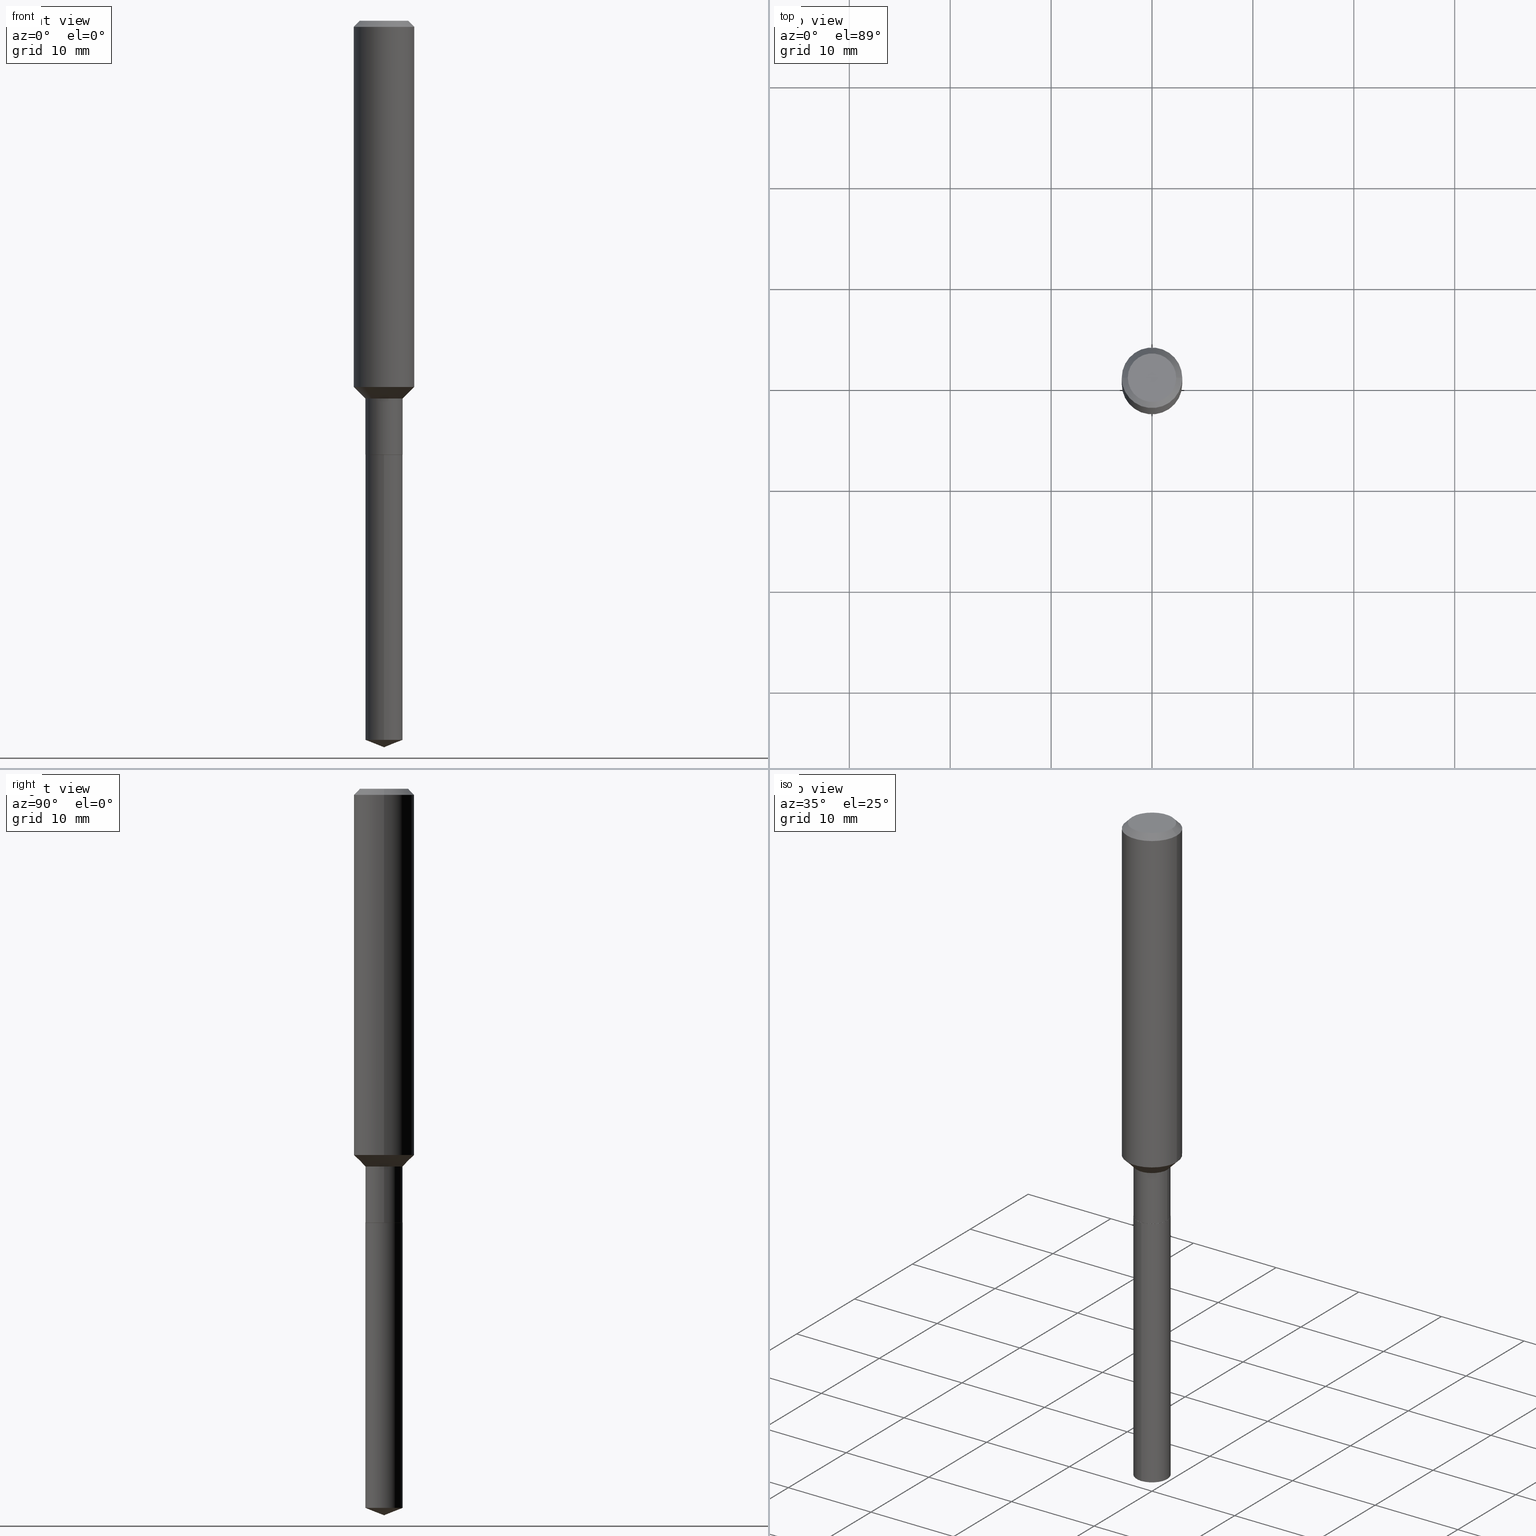
[diagram: canonical four-view strip — front | top / right | iso, engineering-drawing reading convention]
A machine part, canonical four-view strip (front | top / right | iso — engineering-drawing reading convention). The complete STEP part file that produces these views, byte-faithful:
ISO-10303-21;
HEADER;
FILE_DESCRIPTION (( 'STEP AP203' ),
    '1' );
FILE_NAME ('66613.STEP',
    '2024-04-25T02:01:55',
    ( '' ),
    ( '' ),
    'SwSTEP 2.0',
    'SolidWorks 2023',
    '' );
FILE_SCHEMA (( 'CONFIG_CONTROL_DESIGN' ));
ENDSEC;

DATA;
#1 = APPROVAL ( #435, 'UNSPECIFIED' ) ;
#2 = EDGE_LOOP ( 'NONE', ( #111, #99 ) ) ;
#3 = LENGTH_MEASURE_WITH_UNIT ( LENGTH_MEASURE( 0.02539999999999999897 ), #383 );
#4 = VECTOR ( 'NONE', #398, 39.37007874015748143 ) ;
#5 = ORIENTED_EDGE ( 'NONE', *, *, #301, .T. ) ;
#6 = EDGE_CURVE ( 'NONE', #8, #236, #134, .T. ) ;
#7 = CARTESIAN_POINT ( 'NONE',  ( 4.139934141990817236E-29, -5.910728758527560286E-15, -1.692899999999999849 ) ) ;
#8 = VERTEX_POINT ( 'NONE', #190 ) ;
#9 = CARTESIAN_POINT ( 'NONE',  ( 0.1181000000000000799, -8.246878922347486570E-16, 5.758764772215004644E-30 ) ) ;
#10 = COORDINATED_UNIVERSAL_TIME_OFFSET ( 5, 0, .BEHIND. ) ;
#11 = DIRECTION ( 'NONE',  ( 2.440414050576406318E-29, -3.498720036573669211E-15, -1.000000000000000000 ) ) ;
#12 = EDGE_CURVE ( 'NONE', #430, #164, #418, .T. ) ;
#13 = AXIS2_PLACEMENT_3D ( 'NONE', #437, #400, #281 ) ;
#14 = AXIS2_PLACEMENT_3D ( 'NONE', #480, #26, #453 ) ;
#15 = AXIS2_PLACEMENT_3D ( 'NONE', #372, #443, #107 ) ;
#16 = CARTESIAN_POINT ( 'NONE',  ( 0.07234999999999999765, -6.415946108258162351E-15, -1.692899999999999849 ) ) ;
#17 = EDGE_CURVE ( 'NONE', #224, #122, #213, .T. ) ;
#18 = DIRECTION ( 'NONE',  ( 1.000000000000000000, -6.982962677686269077E-15, 0.000000000000000000 ) ) ;
#19 = CALENDAR_DATE ( 2024, 24, 4 ) ;
#20 = CARTESIAN_POINT ( 'NONE',  ( 4.138711407587725556E-29, -5.908983017858139571E-15, -1.692399999999999904 ) ) ;
#21 = VECTOR ( 'NONE', #332, 39.37007874015748143 ) ;
#22 = FACE_OUTER_BOUND ( 'NONE', #175, .T. ) ;
#23 = AXIS2_PLACEMENT_3D ( 'NONE', #417, #235, #80 ) ;
#24 = ORIENTED_EDGE ( 'NONE', *, *, #46, .F. ) ;
#25 = DIRECTION ( 'NONE',  ( -2.440414050576406318E-29, 3.498720036573669606E-15, 1.000000000000000000 ) ) ;
#26 = DIRECTION ( 'NONE',  ( -2.445468806185136597E-29, 3.491481338843145583E-15, 1.000000000000000000 ) ) ;
#27 = LINE ( 'NONE', #489, #386 ) ;
#28 = CARTESIAN_POINT ( 'NONE',  ( 4.716267017698007905E-46, -6.733579360998555036E-32, -1.928573779297252010E-17 ) ) ;
#29 = CONICAL_SURFACE ( 'NONE', #468, 0.07284999999999997033, 0.7853981633974502774 ) ;
#30 = CC_DESIGN_PERSON_AND_ORGANIZATION_ASSIGNMENT ( #135, #285, ( #439 ) ) ;
#31 = DIRECTION ( 'NONE',  ( -1.000000000000000000, 6.982962677686265922E-15, -4.876176775795935793E-29 ) ) ;
#32 = CARTESIAN_POINT ( 'NONE',  ( 0.07284999999999997033, -5.655501472658124631E-15, -1.474099999999999744 ) ) ;
#33 = ORIENTED_EDGE ( 'NONE', *, *, #392, .T. ) ;
#34 = DIRECTION ( 'NONE',  ( -2.445468806185136597E-29, 3.491481338843145583E-15, 1.000000000000000000 ) ) ;
#35 = CIRCLE ( 'NONE', #254, 0.09447999999999998066 ) ;
#36 = PRODUCT ( '66613', '66613', '', ( #160 ) ) ;
#37 = DIRECTION ( 'NONE',  ( -6.982962677686265922E-15, -1.000000000000000000, 3.749962928845934523E-15 ) ) ;
#38 = DIRECTION ( 'NONE',  ( 1.000000000000000000, -6.982962677686266711E-15, 0.000000000000000000 ) ) ;
#39 = VERTEX_POINT ( 'NONE', #324 ) ;
#40 = ORIENTED_EDGE ( 'NONE', *, *, #46, .T. ) ;
#41 = DIRECTION ( 'NONE',  ( -2.445468806185136597E-29, 3.491481338843145583E-15, 1.000000000000000000 ) ) ;
#42 = CONICAL_SURFACE ( 'NONE', #467, 0.1180999999999999966, 0.7853981633974459475 ) ;
#43 = CIRCLE ( 'NONE', #176, 0.07284999999999999809 ) ;
#44 = APPROVAL_PERSON_ORGANIZATION ( #93, #1, #127 ) ;
#45 = CARTESIAN_POINT ( 'NONE',  ( 3.494208103717631419E-29, -4.988803111006027569E-15, -1.428849999999999731 ) ) ;
#46 = EDGE_CURVE ( 'NONE', #171, #445, #371, .T. ) ;
#47 = APPROVAL_ROLE ( '' ) ;
#48 = DIRECTION ( 'NONE',  ( -2.445468806185136597E-29, 3.491481338843145583E-15, 1.000000000000000000 ) ) ;
#49 = EDGE_CURVE ( 'NONE', #39, #60, #27, .T. ) ;
#50 = PERSON_AND_ORGANIZATION_ROLE ( 'design_supplier' ) ;
#51 = FACE_OUTER_BOUND ( 'NONE', #390, .T. ) ;
#52 = VECTOR ( 'NONE', #368, 39.37007874015748143 ) ;
#53 = FACE_OUTER_BOUND ( 'NONE', #79, .T. ) ;
#54 = PERSON_AND_ORGANIZATION ( #184, #193 ) ;
#55 = EDGE_LOOP ( 'NONE', ( #442, #270, #290, #432 ) ) ;
#56 = DIRECTION ( 'NONE',  ( -2.440414050576406318E-29, 3.498720036573669606E-15, 1.000000000000000000 ) ) ;
#57 = PERSON_AND_ORGANIZATION_ROLE ( 'design_owner' ) ;
#58 = ADVANCED_FACE ( 'NONE', ( #464 ), #219, .T. ) ;
#59 = DIRECTION ( 'NONE',  ( -6.497071151882114314E-15, -0.9304175679820237965, 0.3665012267242991340 ) ) ;
#60 = VERTEX_POINT ( 'NONE', #128 ) ;
#61 = VECTOR ( 'NONE', #238, 39.37007874015748143 ) ;
#62 = CYLINDRICAL_SURFACE ( 'NONE', #299, 0.1181000000000000799 ) ;
#63 = EDGE_CURVE ( 'NONE', #445, #171, #276, .T. ) ;
#64 = CONICAL_SURFACE ( 'NONE', #408, 0.07284999999999997033, 0.7853981633974502774 ) ;
#65 = LINE ( 'NONE', #216, #52 ) ;
#66 = DIRECTION ( 'NONE',  ( 1.000000000000000000, -6.982962677686266711E-15, 4.876176775795936353E-29 ) ) ;
#67 = EDGE_CURVE ( 'NONE', #8, #362, #174, .T. ) ;
#68 = DIRECTION ( 'NONE',  ( -0.7071067811866199593, 7.493145998870616062E-15, 0.7071067811864750752 ) ) ;
#69 = VECTOR ( 'NONE', #168, 39.37007874015748854 ) ;
#70 = AXIS2_PLACEMENT_3D ( 'NONE', #45, #41, #312 ) ;
#71 = EDGE_LOOP ( 'NONE', ( #444, #403 ) ) ;
#72 = ORIENTED_EDGE ( 'NONE', *, *, #133, .F. ) ;
#73 = ORIENTED_EDGE ( 'NONE', *, *, #102, .F. ) ;
#74 = CARTESIAN_POINT ( 'NONE',  ( 5.776197320209328408E-31, -8.246878922347560526E-17, -0.02362000000000014435 ) ) ;
#75 = ORIENTED_EDGE ( 'NONE', *, *, #133, .T. ) ;
#76 = DIRECTION ( 'NONE',  ( -2.440414050576406318E-29, 3.498720036573669606E-15, 1.000000000000000000 ) ) ;
#77 = ADVANCED_FACE ( 'NONE', ( #51 ), #42, .T. ) ;
#78 = DIRECTION ( 'NONE',  ( 1.000000000000000000, -6.982962677686265922E-15, 4.876176775795935232E-29 ) ) ;
#79 = EDGE_LOOP ( 'NONE', ( #75, #424, #169, #144 ) ) ;
#80 = DIRECTION ( 'NONE',  ( 1.000000000000000000, -6.982962677686266711E-15, 4.876176775795936353E-29 ) ) ;
#81 = EDGE_CURVE ( 'NONE', #251, #430, #202, .T. ) ;
#82 = FACE_OUTER_BOUND ( 'NONE', #86, .T. ) ;
#83 = CIRCLE ( 'NONE', #214, 0.1180999999999999966 ) ;
#84 = CALENDAR_DATE ( 2024, 24, 4 ) ;
#85 = DIRECTION ( 'NONE',  ( -2.445468806185136597E-29, 3.491481338843145583E-15, 1.000000000000000000 ) ) ;
#86 = EDGE_LOOP ( 'NONE', ( #260, #404, #308 ) ) ;
#87 = CYLINDRICAL_SURFACE ( 'NONE', #267, 0.07284999999999999809 ) ;
#88 = ORIENTED_EDGE ( 'NONE', *, *, #12, .F. ) ;
#89 = CC_DESIGN_PERSON_AND_ORGANIZATION_ASSIGNMENT ( #124, #465, ( #429 ) ) ;
#90 = COORDINATED_UNIVERSAL_TIME_OFFSET ( 5, 0, .BEHIND. ) ;
#91 = CARTESIAN_POINT ( 'NONE',  ( 6.917597667763880730E-29, -9.917471815671723220E-15, -2.834600000000000009 ) ) ;
#92 = CLOSED_SHELL ( 'NONE', ( #155, #58, #367, #330, #140 ) ) ;
#93 = PERSON_AND_ORGANIZATION ( #184, #193 ) ;
#94 = CARTESIAN_POINT ( 'NONE',  ( -0.1180999999999999966, 7.422191030112725094E-16, -0.02362000000000014435 ) ) ;
#95 = EDGE_CURVE ( 'NONE', #161, #171, #166, .T. ) ;
#96 = PERSON_AND_ORGANIZATION_ROLE ( 'creator' ) ;
#97 = DIRECTION ( 'NONE',  ( 2.445468806185136597E-29, -3.491481338843145583E-15, -1.000000000000000000 ) ) ;
#98 = DIRECTION ( 'NONE',  ( -0.7071067811865489050, 7.493145998870358893E-15, 0.7071067811865461294 ) ) ;
#99 = ORIENTED_EDGE ( 'NONE', *, *, #271, .T. ) ;
#100 = CARTESIAN_POINT ( 'NONE',  ( 4.139934141990817236E-29, -5.910728758527560286E-15, -1.692899999999999849 ) ) ;
#101 = CARTESIAN_POINT ( 'NONE',  ( 2.358133508849003952E-46, -3.366789680499277518E-32, -9.642868896486260050E-18 ) ) ;
#102 = EDGE_CURVE ( 'NONE', #112, #161, #377, .T. ) ;
#103 = CARTESIAN_POINT ( 'NONE',  ( 4.139934141990817236E-29, -5.910728758527560286E-15, -1.692899999999999849 ) ) ;
#104 = ORIENTED_EDGE ( 'NONE', *, *, #6, .F. ) ;
#105 = ORIENTED_EDGE ( 'NONE', *, *, #182, .T. ) ;
#106 = DIRECTION ( 'NONE',  ( -6.982962677686265922E-15, -1.000000000000000000, 3.749962928845934523E-15 ) ) ;
#107 = DIRECTION ( 'NONE',  ( 1.000000000000000000, -6.982962677686266711E-15, 0.000000000000000000 ) ) ;
#108 = ORIENTED_EDGE ( 'NONE', *, *, #484, .T. ) ;
#109 = CIRCLE ( 'NONE', #388, 0.07284999999999997033 ) ;
#110 =( GEOMETRIC_REPRESENTATION_CONTEXT ( 3 ) GLOBAL_UNCERTAINTY_ASSIGNED_CONTEXT ( ( #384 ) ) GLOBAL_UNIT_ASSIGNED_CONTEXT ( ( #457, #113, #114 ) ) REPRESENTATION_CONTEXT ( 'NONE', 'WORKASPACE' ) );
#111 = ORIENTED_EDGE ( 'NONE', *, *, #6, .T. ) ;
#112 = VERTEX_POINT ( 'NONE', #470 ) ;
#113 =( NAMED_UNIT ( * ) PLANE_ANGLE_UNIT ( ) SI_UNIT ( $, .RADIAN. ) );
#114 =( NAMED_UNIT ( * ) SI_UNIT ( $, .STERADIAN. ) SOLID_ANGLE_UNIT ( ) );
#115 = ORIENTED_EDGE ( 'NONE', *, *, #271, .F. ) ;
#116 = PRODUCT_DEFINITION_SHAPE ( 'NONE', 'NONE',  #439 ) ;
#117 = DIRECTION ( 'NONE',  ( -6.982962677686265922E-15, -1.000000000000000000, 3.498627837350027099E-15 ) ) ;
#118 = AXIS2_PLACEMENT_3D ( 'NONE', #103, #337, #412 ) ;
#119 = APPLICATION_CONTEXT ( 'configuration controlled 3d designs of mechanical parts and assemblies' ) ;
#120 = APPLICATION_PROTOCOL_DEFINITION ( 'international standard', 'config_control_design', 1994, #119 ) ;
#121 = EDGE_LOOP ( 'NONE', ( #349, #73 ) ) ;
#122 = VERTEX_POINT ( 'NONE', #477 ) ;
#123 = EDGE_CURVE ( 'NONE', #161, #112, #203, .T. ) ;
#124 = PERSON_AND_ORGANIZATION ( #184, #193 ) ;
#125 = CARTESIAN_POINT ( 'NONE',  ( 4.138711407587725556E-29, -5.908983017858139571E-15, -1.692399999999999904 ) ) ;
#126 = LOCAL_TIME ( 22, 1, 55.00000000000000000, #361 ) ;
#127 = APPROVAL_ROLE ( '' ) ;
#128 = CARTESIAN_POINT ( 'NONE',  ( -0.1181000000000001632, -4.149652140073347794E-15, -1.428849999999999731 ) ) ;
#129 = ORIENTED_EDGE ( 'NONE', *, *, #321, .F. ) ;
#130 = CARTESIAN_POINT ( 'NONE',  ( 4.139934141990817236E-29, -5.910728758527560286E-15, -1.692899999999999849 ) ) ;
#131 = CALENDAR_DATE ( 2024, 24, 4 ) ;
#132 = DIRECTION ( 'NONE',  ( -2.445468806185136597E-29, 3.491481338843145583E-15, 1.000000000000000000 ) ) ;
#133 = EDGE_CURVE ( 'NONE', #466, #39, #448, .T. ) ;
#134 = CIRCLE ( 'NONE', #231, 0.09447999999999998066 ) ;
#135 = PERSON_AND_ORGANIZATION ( #184, #193 ) ;
#136 = CIRCLE ( 'NONE', #378, 0.07285000000000001197 ) ;
#137 = LOCAL_TIME ( 22, 1, 55.00000000000000000, #163 ) ;
#138 = CARTESIAN_POINT ( 'NONE',  ( 5.176303830013016027E-16, 0.07284999999999408615, -1.692900000000000071 ) ) ;
#139 = DIRECTION ( 'NONE',  ( -2.445468806185136597E-29, 3.491481338843145583E-15, 1.000000000000000000 ) ) ;
#140 = ADVANCED_FACE ( 'NONE', ( #357 ), #247, .F. ) ;
#141 = DIRECTION ( 'NONE',  ( -2.440414050576406038E-29, 3.498720036573669211E-15, 1.000000000000000000 ) ) ;
#142 = AXIS2_PLACEMENT_3D ( 'NONE', #146, #217, #261 ) ;
#143 = PLANE ( 'NONE',  #158 ) ;
#144 = ORIENTED_EDGE ( 'NONE', *, *, #225, .F. ) ;
#145 = LOCAL_TIME ( 22, 1, 55.00000000000000000, #10 ) ;
#146 = CARTESIAN_POINT ( 'NONE',  ( 4.139934141990817236E-29, -5.910728758527560286E-15, -1.692899999999999849 ) ) ;
#147 = CARTESIAN_POINT ( 'NONE',  ( 4.139934141990817236E-29, -5.910728758527560286E-15, -1.692899999999999849 ) ) ;
#148 = ORIENTED_EDGE ( 'NONE', *, *, #426, .F. ) ;
#149 = LINE ( 'NONE', #333, #461 ) ;
#150 = CLOSED_SHELL ( 'NONE', ( #313, #343, #258, #189, #414, #280, #205, #434, #77, #310, #252, #194 ) ) ;
#151 = ORIENTED_EDGE ( 'NONE', *, *, #67, .F. ) ;
#152 = DIRECTION ( 'NONE',  ( 1.000000000000000000, -6.982962677686267499E-15, 4.875432709231658792E-29 ) ) ;
#153 = ORIENTED_EDGE ( 'NONE', *, *, #426, .T. ) ;
#154 = DIRECTION ( 'NONE',  ( -2.445468806185136597E-29, 3.491481338843145583E-15, 1.000000000000000000 ) ) ;
#155 = ADVANCED_FACE ( 'NONE', ( #208 ), #87, .T. ) ;
#156 = CARTESIAN_POINT ( 'NONE',  ( 0.000000000000000000, 0.000000000000000000, 0.000000000000000000 ) ) ;
#157 = AXIS2_PLACEMENT_3D ( 'NONE', #125, #167, #373 ) ;
#158 = AXIS2_PLACEMENT_3D ( 'NONE', #101, #188, #31 ) ;
#159 = EDGE_LOOP ( 'NONE', ( #227, #223, #206, #148 ) ) ;
#160 = MECHANICAL_CONTEXT ( 'NONE', #119, 'mechanical' ) ;
#161 = VERTEX_POINT ( 'NONE', #391 ) ;
#162 = APPLICATION_CONTEXT ( 'configuration controlled 3d designs of mechanical parts and assemblies' ) ;
#163 = COORDINATED_UNIVERSAL_TIME_OFFSET ( 5, 0, .BEHIND. ) ;
#164 = VERTEX_POINT ( 'NONE', #138 ) ;
#165 = PERSON_AND_ORGANIZATION ( #184, #193 ) ;
#166 = LINE ( 'NONE', #16, #21 ) ;
#167 = DIRECTION ( 'NONE',  ( -2.445468806185136597E-29, 3.491481338843145583E-15, 1.000000000000000000 ) ) ;
#168 = DIRECTION ( 'NONE',  ( 6.611014441532060278E-15, 0.9304175679820263500, 0.3665012267242925281 ) ) ;
#169 = ORIENTED_EDGE ( 'NONE', *, *, #218, .F. ) ;
#170 = DATE_AND_TIME ( #246, #255 ) ;
#171 = VERTEX_POINT ( 'NONE', #360 ) ;
#172 = DIRECTION ( 'NONE',  ( -2.445468806185136597E-29, 3.491481338843145583E-15, 1.000000000000000000 ) ) ;
#173 = APPROVAL_DATE_TIME ( #291, #1 ) ;
#174 = LINE ( 'NONE', #94, #436 ) ;
#175 = EDGE_LOOP ( 'NONE', ( #316, #197, #284, #345 ) ) ;
#176 = AXIS2_PLACEMENT_3D ( 'NONE', #7, #200, #37 ) ;
#177 = CC_DESIGN_SECURITY_CLASSIFICATION ( #429, ( #309 ) ) ;
#178 = CARTESIAN_POINT ( 'NONE',  ( 5.776197320209328408E-31, -8.246878922347560526E-17, -0.02362000000000014435 ) ) ;
#179 = ORIENTED_EDGE ( 'NONE', *, *, #225, .T. ) ;
#180 = EDGE_CURVE ( 'NONE', #251, #395, #433, .T. ) ;
#181 = DIRECTION ( 'NONE',  ( -6.982962677686265133E-15, -1.000000000000000000, 0.000000000000000000 ) ) ;
#182 = EDGE_CURVE ( 'NONE', #430, #395, #136, .T. ) ;
#183 = CARTESIAN_POINT ( 'NONE',  ( 0.1181000000000001632, -5.813491003240776621E-15, -1.428849999999999731 ) ) ;
#184 = PERSON ( 'UNSPECIFIED', 'UNSPECIFIED', 'UNSPECIFIED', ('UNSPECIFIED'), ('UNSPECIFIED'), ('UNSPECIFIED') ) ;
#185 = AXIS2_PLACEMENT_3D ( 'NONE', #74, #303, #487 ) ;
#186 = CARTESIAN_POINT ( 'NONE',  ( 0.000000000000000000, 0.000000000000000000, 0.000000000000000000 ) ) ;
#187 = CC_DESIGN_APPROVAL ( #486, ( #439 ) ) ;
#188 = DIRECTION ( 'NONE',  ( 2.438088387897960049E-29, -3.491481338843145188E-15, -1.000000000000000000 ) ) ;
#189 = ADVANCED_FACE ( 'NONE', ( #53 ), #29, .T. ) ;
#190 = CARTESIAN_POINT ( 'NONE',  ( -0.09447999999999998066, 7.009847083995354710E-16, -1.928573779297727792E-17 ) ) ;
#191 = LINE ( 'NONE', #226, #475 ) ;
#192 = EDGE_LOOP ( 'NONE', ( #314, #153, #179, #488 ) ) ;
#193 = ORGANIZATION ( 'UNSPECIFIED', 'UNSPECIFIED', '' ) ;
#194 = ADVANCED_FACE ( 'NONE', ( #22 ), #245, .T. ) ;
#195 = DESIGN_CONTEXT ( 'detailed design', #162, 'design' ) ;
#196 = DIRECTION ( 'NONE',  ( -2.445468806185136877E-29, 3.491481338843145188E-15, 1.000000000000000000 ) ) ;
#197 = ORIENTED_EDGE ( 'NONE', *, *, #102, .T. ) ;
#198 = FACE_OUTER_BOUND ( 'NONE', #447, .T. ) ;
#199 = AXIS2_PLACEMENT_3D ( 'NONE', #100, #25, #416 ) ;
#200 = DIRECTION ( 'NONE',  ( -2.440414050576406318E-29, 3.498720036573669606E-15, 1.000000000000000000 ) ) ;
#201 = FACE_OUTER_BOUND ( 'NONE', #192, .T. ) ;
#202 = LINE ( 'NONE', #363, #69 ) ;
#203 = CIRCLE ( 'NONE', #232, 0.07234999999999999765 ) ;
#204 = CIRCLE ( 'NONE', #482, 0.07285000000000001197 ) ;
#205 = ADVANCED_FACE ( 'NONE', ( #201 ), #64, .T. ) ;
#206 = ORIENTED_EDGE ( 'NONE', *, *, #463, .T. ) ;
#207 = ORIENTED_EDGE ( 'NONE', *, *, #229, .F. ) ;
#208 = FACE_OUTER_BOUND ( 'NONE', #263, .T. ) ;
#209 = APPROVAL_STATUS ( 'not_yet_approved' ) ;
#210 = DIRECTION ( 'NONE',  ( -2.440414050576406318E-29, 3.498720036573669606E-15, 1.000000000000000000 ) ) ;
#211 = DATE_TIME_ROLE ( 'creation_date' ) ;
#212 = DIRECTION ( 'NONE',  ( -6.982962677686265133E-15, -1.000000000000000000, 0.000000000000000000 ) ) ;
#213 = LINE ( 'NONE', #9, #61 ) ;
#214 = AXIS2_PLACEMENT_3D ( 'NONE', #266, #154, #38 ) ;
#215 = PLANE ( 'NONE',  #118 ) ;
#216 = CARTESIAN_POINT ( 'NONE',  ( -0.07284999999999998421, 5.176303830012328732E-16, -3.583444213250698428E-30 ) ) ;
#217 = DIRECTION ( 'NONE',  ( -2.445468806185136597E-29, 3.491481338843145583E-15, 1.000000000000000000 ) ) ;
#218 = EDGE_CURVE ( 'NONE', #224, #60, #268, .T. ) ;
#219 = CONICAL_SURFACE ( 'NONE', #289, 99.94676754583932166, 1.195550537616117293 ) ;
#220 = CARTESIAN_POINT ( 'NONE',  ( 4.716267017698007905E-46, -6.733579360998555036E-32, -1.928573779297252010E-17 ) ) ;
#221 = CIRCLE ( 'NONE', #199, 0.07284999999999999809 ) ;
#222 = LINE ( 'NONE', #32, #438 ) ;
#223 = ORIENTED_EDGE ( 'NONE', *, *, #63, .T. ) ;
#224 = VERTEX_POINT ( 'NONE', #183 ) ;
#225 = EDGE_CURVE ( 'NONE', #466, #224, #222, .T. ) ;
#226 = CARTESIAN_POINT ( 'NONE',  ( -5.087088310694030658E-16, -0.07285000000000591003, -1.692899999999999627 ) ) ;
#227 = ORIENTED_EDGE ( 'NONE', *, *, #359, .F. ) ;
#228 = CYLINDRICAL_SURFACE ( 'NONE', #331, 0.07284999999999998421 ) ;
#229 = EDGE_CURVE ( 'NONE', #395, #425, #191, .T. ) ;
#230 = CARTESIAN_POINT ( 'NONE',  ( 0.07284999999999998421, -5.087088310694443823E-16, 3.552294781167338121E-30 ) ) ;
#231 = AXIS2_PLACEMENT_3D ( 'NONE', #220, #374, #152 ) ;
#232 = AXIS2_PLACEMENT_3D ( 'NONE', #241, #139, #323 ) ;
#233 = AXIS2_PLACEMENT_3D ( 'NONE', #471, #132, #320 ) ;
#234 = PRODUCT_RELATED_PRODUCT_CATEGORY ( 'detail', '', ( #36 ) ) ;
#235 = DIRECTION ( 'NONE',  ( -2.445468806185136597E-29, 3.491481338843145583E-15, 1.000000000000000000 ) ) ;
#236 = VERTEX_POINT ( 'NONE', #297 ) ;
#237 = CARTESIAN_POINT ( 'NONE',  ( -0.07284999999999999809, -5.010257446722176396E-15, -1.692399999999999904 ) ) ;
#238 = DIRECTION ( 'NONE',  ( -2.445468806185136877E-29, 3.491481338843145188E-15, 1.000000000000000000 ) ) ;
#239 = DIRECTION ( 'NONE',  ( 1.000000000000000000, 0.000000000000000000, 0.000000000000000000 ) ) ;
#240 = VECTOR ( 'NONE', #196, 39.37007874015748143 ) ;
#241 = CARTESIAN_POINT ( 'NONE',  ( 4.139934141990817236E-29, -5.910728758527560286E-15, -1.692899999999999849 ) ) ;
#242 = SECURITY_CLASSIFICATION_LEVEL ( 'unclassified' ) ;
#243 = CARTESIAN_POINT ( 'NONE',  ( 3.604865567197509213E-29, -5.146792641588679559E-15, -1.474099999999999744 ) ) ;
#244 = DIRECTION ( 'NONE',  ( -2.440414050576406318E-29, 3.498720036573669606E-15, 1.000000000000000000 ) ) ;
#245 = CONICAL_SURFACE ( 'NONE', #397, 0.07234999999999999765, 0.7853981633975507526 ) ;
#246 = CALENDAR_DATE ( 2024, 24, 4 ) ;
#247 = PLANE ( 'NONE',  #298 ) ;
#248 = ORIENTED_EDGE ( 'NONE', *, *, #392, .F. ) ;
#249 = DATE_TIME_ROLE ( 'classification_date' ) ;
#250 = DIRECTION ( 'NONE',  ( 1.000000000000000000, -6.982962677686265922E-15, 0.000000000000000000 ) ) ;
#251 = VERTEX_POINT ( 'NONE', #334 ) ;
#252 = ADVANCED_FACE ( 'NONE', ( #259 ), #215, .F. ) ;
#253 = CYLINDRICAL_SURFACE ( 'NONE', #365, 0.07284999999999999809 ) ;
#254 = AXIS2_PLACEMENT_3D ( 'NONE', #28, #336, #446 ) ;
#255 = LOCAL_TIME ( 22, 1, 55.00000000000000000, #274 ) ;
#256 = DIRECTION ( 'NONE',  ( -2.440414050576406318E-29, 3.498720036573669606E-15, 1.000000000000000000 ) ) ;
#257 = FACE_OUTER_BOUND ( 'NONE', #2, .T. ) ;
#258 = ADVANCED_FACE ( 'NONE', ( #455 ), #62, .T. ) ;
#259 = FACE_OUTER_BOUND ( 'NONE', #121, .T. ) ;
#260 = ORIENTED_EDGE ( 'NONE', *, *, #81, .F. ) ;
#261 = DIRECTION ( 'NONE',  ( 1.000000000000000000, -6.982962677686272233E-15, 0.000000000000000000 ) ) ;
#262 = APPROVAL_PERSON_ORGANIZATION ( #328, #486, #47 ) ;
#263 = EDGE_LOOP ( 'NONE', ( #304, #286, #387, #207 ) ) ;
#264 = CARTESIAN_POINT ( 'NONE',  ( -5.087088310694030658E-16, -0.07285000000000591003, -1.692899999999999627 ) ) ;
#265 = CC_DESIGN_PERSON_AND_ORGANIZATION_ASSIGNMENT ( #165, #96, ( #309 ) ) ;
#266 = CARTESIAN_POINT ( 'NONE',  ( 5.776197320209328408E-31, -8.246878922347560526E-17, -0.02362000000000014435 ) ) ;
#267 = AXIS2_PLACEMENT_3D ( 'NONE', #130, #56, #283 ) ;
#268 = CIRCLE ( 'NONE', #233, 0.1181000000000001632 ) ;
#269 = ORIENTED_EDGE ( 'NONE', *, *, #67, .T. ) ;
#270 = ORIENTED_EDGE ( 'NONE', *, *, #399, .T. ) ;
#271 = EDGE_CURVE ( 'NONE', #236, #8, #35, .T. ) ;
#272 = DIMENSIONAL_EXPONENTS ( 1.000000000000000000, 0.000000000000000000, 0.000000000000000000, 0.000000000000000000, 0.000000000000000000, 0.000000000000000000, 0.000000000000000000 ) ;
#273 = CARTESIAN_POINT ( 'NONE',  ( -8.915313846624587050E-28, 1.278396659053883251E-13, 36.53547874015747965 ) ) ;
#274 = COORDINATED_UNIVERSAL_TIME_OFFSET ( 5, 0, .BEHIND. ) ;
#275 = EDGE_LOOP ( 'NONE', ( #115, #33, #108, #151 ) ) ;
#276 = CIRCLE ( 'NONE', #407, 0.07284999999999999809 ) ;
#277 = ORIENTED_EDGE ( 'NONE', *, *, #348, .T. ) ;
#278 = ORIENTED_EDGE ( 'NONE', *, *, #17, .F. ) ;
#279 = PERSON_AND_ORGANIZATION ( #184, #193 ) ;
#280 = ADVANCED_FACE ( 'NONE', ( #370 ), #366, .T. ) ;
#281 = DIRECTION ( 'NONE',  ( 1.000000000000000000, -6.982962677686269077E-15, 0.000000000000000000 ) ) ;
#282 = ORIENTED_EDGE ( 'NONE', *, *, #81, .T. ) ;
#283 = DIRECTION ( 'NONE',  ( -6.982962677686265922E-15, -1.000000000000000000, 3.749962928845934523E-15 ) ) ;
#284 = ORIENTED_EDGE ( 'NONE', *, *, #95, .T. ) ;
#285 = PERSON_AND_ORGANIZATION_ROLE ( 'creator' ) ;
#286 = ORIENTED_EDGE ( 'NONE', *, *, #12, .T. ) ;
#287 = ORIENTED_EDGE ( 'NONE', *, *, #463, .F. ) ;
#288 = DIRECTION ( 'NONE',  ( 1.000000000000000000, -6.982962677686272233E-15, 0.000000000000000000 ) ) ;
#289 = AXIS2_PLACEMENT_3D ( 'NONE', #273, #210, #329 ) ;
#290 = ORIENTED_EDGE ( 'NONE', *, *, #17, .T. ) ;
#291 = DATE_AND_TIME ( #19, #126 ) ;
#292 = ORIENTED_EDGE ( 'NONE', *, *, #218, .T. ) ;
#293 = DIRECTION ( 'NONE',  ( -0.7071067811865459074, 2.468850131082239706E-15, -0.7071067811865492381 ) ) ;
#294 = EDGE_CURVE ( 'NONE', #112, #445, #481, .T. ) ;
#295 = CARTESIAN_POINT ( 'NONE',  ( 3.604865567197509213E-29, -5.146792641588679559E-15, -1.474099999999999744 ) ) ;
#296 = EDGE_LOOP ( 'NONE', ( #476, #282, #305 ) ) ;
#297 = CARTESIAN_POINT ( 'NONE',  ( 0.09447999999999998066, -7.704367267948738690E-16, -1.928573779296752193E-17 ) ) ;
#298 = AXIS2_PLACEMENT_3D ( 'NONE', #402, #11, #469 ) ;
#299 = AXIS2_PLACEMENT_3D ( 'NONE', #186, #375, #66 ) ;
#300 = CARTESIAN_POINT ( 'NONE',  ( 6.856123819099529673E-29, -9.804816831078297539E-15, -2.805903621851451479 ) ) ;
#301 = EDGE_CURVE ( 'NONE', #362, #122, #341, .T. ) ;
#302 = FACE_OUTER_BOUND ( 'NONE', #405, .T. ) ;
#303 = DIRECTION ( 'NONE',  ( 2.445468806185136597E-29, -3.491481338843145583E-15, -1.000000000000000000 ) ) ;
#304 = ORIENTED_EDGE ( 'NONE', *, *, #340, .T. ) ;
#305 = ORIENTED_EDGE ( 'NONE', *, *, #340, .F. ) ;
#306 = VECTOR ( 'NONE', #422, 39.37007874015748143 ) ;
#307 = LINE ( 'NONE', #230, #240 ) ;
#308 = ORIENTED_EDGE ( 'NONE', *, *, #182, .F. ) ;
#309 = PRODUCT_DEFINITION_FORMATION_WITH_SPECIFIED_SOURCE ( 'ANY', '', #36, .NOT_KNOWN. ) ;
#310 = ADVANCED_FACE ( 'NONE', ( #257 ), #143, .F. ) ;
#311 = DIRECTION ( 'NONE',  ( 0.000000000000000000, 0.000000000000000000, 1.000000000000000000 ) ) ;
#312 = DIRECTION ( 'NONE',  ( 1.000000000000000000, -6.982962677686263555E-15, 0.000000000000000000 ) ) ;
#313 = ADVANCED_FACE ( 'NONE', ( #339 ), #355, .T. ) ;
#314 = ORIENTED_EDGE ( 'NONE', *, *, #49, .F. ) ;
#315 = CARTESIAN_POINT ( 'NONE',  ( 0.1180999999999999966, -8.926936027602933910E-16, -0.02362000000000014435 ) ) ;
#316 = ORIENTED_EDGE ( 'NONE', *, *, #294, .F. ) ;
#317 = APPROVAL_ROLE ( '' ) ;
#318 = ORIENTED_EDGE ( 'NONE', *, *, #359, .T. ) ;
#319 = APPROVAL_DATE_TIME ( #358, #486 ) ;
#320 = DIRECTION ( 'NONE',  ( 1.000000000000000000, -6.982962677686263555E-15, 0.000000000000000000 ) ) ;
#321 = EDGE_CURVE ( 'NONE', #164, #425, #221, .T. ) ;
#322 = DATE_AND_TIME ( #84, #137 ) ;
#323 = DIRECTION ( 'NONE',  ( 1.000000000000000000, -6.982962677686272233E-15, 0.000000000000000000 ) ) ;
#324 = CARTESIAN_POINT ( 'NONE',  ( -0.07284999999999997033, -5.010257446722176396E-15, -1.474099999999999744 ) ) ;
#325 = DIRECTION ( 'NONE',  ( 1.000000000000000000, -6.982962677686269077E-15, 0.000000000000000000 ) ) ;
#326 = EDGE_LOOP ( 'NONE', ( #459, #478, #24, #338 ) ) ;
#327 = ADVANCED_BREP_SHAPE_REPRESENTATION ( '66613', ( #451, #454, #420 ), #110 ) ;
#328 = PERSON_AND_ORGANIZATION ( #184, #193 ) ;
#329 = DIRECTION ( 'NONE',  ( -6.982962677686265922E-15, -1.000000000000000000, 3.498627837350027099E-15 ) ) ;
#330 = ADVANCED_FACE ( 'NONE', ( #302 ), #253, .T. ) ;
#331 = AXIS2_PLACEMENT_3D ( 'NONE', #385, #34, #78 ) ;
#332 = DIRECTION ( 'NONE',  ( 0.7071067811866199593, -2.468850131083015945E-15, 0.7071067811864750752 ) ) ;
#333 = CARTESIAN_POINT ( 'NONE',  ( -0.1181000000000000799, 8.391509709326788873E-16, -5.809262341591047988E-30 ) ) ;
#334 = CARTESIAN_POINT ( 'NONE',  ( 6.917597667763880730E-29, -9.917471815671723220E-15, -2.834600000000000009 ) ) ;
#335 = CONICAL_SURFACE ( 'NONE', #185, 0.1180999999999999966, 0.7853981633974459475 ) ;
#336 = DIRECTION ( 'NONE',  ( -2.445468806185136597E-29, 3.491481338843145583E-15, 1.000000000000000000 ) ) ;
#337 = DIRECTION ( 'NONE',  ( -2.438088387897960049E-29, 3.491481338843145188E-15, 1.000000000000000000 ) ) ;
#338 = ORIENTED_EDGE ( 'NONE', *, *, #95, .F. ) ;
#339 = FACE_OUTER_BOUND ( 'NONE', #326, .T. ) ;
#340 = EDGE_CURVE ( 'NONE', #395, #430, #204, .T. ) ;
#341 = CIRCLE ( 'NONE', #15, 0.1180999999999999966 ) ;
#342 = CARTESIAN_POINT ( 'NONE',  ( 0.07284999999999997033, -5.655501472658124631E-15, -1.474099999999999744 ) ) ;
#343 = ADVANCED_FACE ( 'NONE', ( #406 ), #335, .T. ) ;
#344 = CARTESIAN_POINT ( 'NONE',  ( 5.176303830013016027E-16, 0.07284999999999021425, -2.805903621851451479 ) ) ;
#345 = ORIENTED_EDGE ( 'NONE', *, *, #63, .F. ) ;
#346 = CONICAL_SURFACE ( 'NONE', #413, 99.94676754583932166, 1.195550537616117293 ) ;
#347 = CARTESIAN_POINT ( 'NONE',  ( 3.604865567197509213E-29, -5.146792641588679559E-15, -1.474099999999999744 ) ) ;
#348 = EDGE_CURVE ( 'NONE', #60, #362, #149, .T. ) ;
#349 = ORIENTED_EDGE ( 'NONE', *, *, #123, .F. ) ;
#350 = APPROVAL_DATE_TIME ( #170, #364 ) ;
#351 = CARTESIAN_POINT ( 'NONE',  ( 6.856123819099529673E-29, -9.804816831078297539E-15, -2.805903621851451479 ) ) ;
#352 = APPLICATION_PROTOCOL_DEFINITION ( 'international standard', 'config_control_design', 1994, #162 ) ;
#353 = VECTOR ( 'NONE', #59, 39.37007874015748143 ) ;
#354 = DIRECTION ( 'NONE',  ( -2.445468806185136597E-29, 3.491481338843145583E-15, 1.000000000000000000 ) ) ;
#355 = CONICAL_SURFACE ( 'NONE', #142, 0.07234999999999999765, 0.7853981633975507526 ) ;
#356 = APPROVAL_PERSON_ORGANIZATION ( #54, #364, #317 ) ;
#357 = FACE_OUTER_BOUND ( 'NONE', #71, .T. ) ;
#358 = DATE_AND_TIME ( #131, #145 ) ;
#359 = EDGE_CURVE ( 'NONE', #445, #39, #65, .T. ) ;
#360 = CARTESIAN_POINT ( 'NONE',  ( 0.07284999999999999809, -6.417691848927583855E-15, -1.692399999999999904 ) ) ;
#361 = COORDINATED_UNIVERSAL_TIME_OFFSET ( 5, 0, .BEHIND. ) ;
#362 = VERTEX_POINT ( 'NONE', #452 ) ;
#363 = CARTESIAN_POINT ( 'NONE',  ( 6.934862132315807139E-29, -9.892963032895715087E-15, -2.834600000000000009 ) ) ;
#364 = APPROVAL ( #209, 'UNSPECIFIED' ) ;
#365 = AXIS2_PLACEMENT_3D ( 'NONE', #147, #256, #106 ) ;
#366 = CYLINDRICAL_SURFACE ( 'NONE', #14, 0.07284999999999998421 ) ;
#367 = ADVANCED_FACE ( 'NONE', ( #82 ), #346, .T. ) ;
#368 = DIRECTION ( 'NONE',  ( -2.445468806185136877E-29, 3.491481338843145188E-15, 1.000000000000000000 ) ) ;
#369 = CC_DESIGN_PERSON_AND_ORGANIZATION_ASSIGNMENT ( #440, #57, ( #36 ) ) ;
#370 = FACE_OUTER_BOUND ( 'NONE', #159, .T. ) ;
#371 = CIRCLE ( 'NONE', #157, 0.07284999999999999809 ) ;
#372 = CARTESIAN_POINT ( 'NONE',  ( 5.776197320209328408E-31, -8.246878922347560526E-17, -0.02362000000000014435 ) ) ;
#373 = DIRECTION ( 'NONE',  ( 1.000000000000000000, -6.982962677686265922E-15, 0.000000000000000000 ) ) ;
#374 = DIRECTION ( 'NONE',  ( -2.445468806185136597E-29, 3.491481338843145583E-15, 1.000000000000000000 ) ) ;
#375 = DIRECTION ( 'NONE',  ( -2.445468806185136597E-29, 3.491481338843145583E-15, 1.000000000000000000 ) ) ;
#376 = CARTESIAN_POINT ( 'NONE',  ( -5.087088310693760473E-16, -0.07285000000000982356, -2.805903621851451479 ) ) ;
#377 = CIRCLE ( 'NONE', #449, 0.07234999999999999765 ) ;
#378 = AXIS2_PLACEMENT_3D ( 'NONE', #351, #244, #212 ) ;
#379 = DIRECTION ( 'NONE',  ( -2.445468806185136597E-29, 3.491481338843145583E-15, 1.000000000000000000 ) ) ;
#380 = LOCAL_TIME ( 22, 1, 55.00000000000000000, #90 ) ;
#381 = DIRECTION ( 'NONE',  ( 1.000000000000000000, -6.982962677686269077E-15, 0.000000000000000000 ) ) ;
#382 = CARTESIAN_POINT ( 'NONE',  ( 5.176303830012742884E-16, 0.07284999999999408615, -1.692900000000000071 ) ) ;
#383 =( LENGTH_UNIT ( ) NAMED_UNIT ( * ) SI_UNIT ( $, .METRE. ) );
#384 = UNCERTAINTY_MEASURE_WITH_UNIT (LENGTH_MEASURE( 1.000000000000000082E-05 ), #457, 'distance_accuracy_value', 'NONE');
#385 = CARTESIAN_POINT ( 'NONE',  ( 0.000000000000000000, 0.000000000000000000, 0.000000000000000000 ) ) ;
#386 = VECTOR ( 'NONE', #98, 39.37007874015748143 ) ;
#387 = ORIENTED_EDGE ( 'NONE', *, *, #419, .F. ) ;
#388 = AXIS2_PLACEMENT_3D ( 'NONE', #347, #379, #381 ) ;
#389 = CC_DESIGN_APPROVAL ( #1, ( #309 ) ) ;
#390 = EDGE_LOOP ( 'NONE', ( #248, #104, #269, #5 ) ) ;
#391 = CARTESIAN_POINT ( 'NONE',  ( 0.07234999999999999765, -6.415946108258162351E-15, -1.692899999999999849 ) ) ;
#392 = EDGE_CURVE ( 'NONE', #236, #122, #458, .T. ) ;
#393 = DATE_AND_TIME ( #401, #380 ) ;
#394 = CARTESIAN_POINT ( 'NONE',  ( 4.139934141990817236E-29, -5.910728758527560286E-15, -1.692899999999999849 ) ) ;
#395 = VERTEX_POINT ( 'NONE', #376 ) ;
#396 = CARTESIAN_POINT ( 'NONE',  ( 4.139934141990817236E-29, -5.910728758527560286E-15, -1.692899999999999849 ) ) ;
#397 = AXIS2_PLACEMENT_3D ( 'NONE', #396, #354, #288 ) ;
#398 = DIRECTION ( 'NONE',  ( -2.440414050576406038E-29, 3.498720036573669211E-15, 1.000000000000000000 ) ) ;
#399 = EDGE_CURVE ( 'NONE', #60, #224, #428, .T. ) ;
#400 = DIRECTION ( 'NONE',  ( -2.445468806185136597E-29, 3.491481338843145583E-15, 1.000000000000000000 ) ) ;
#401 = CALENDAR_DATE ( 2024, 24, 4 ) ;
#402 = CARTESIAN_POINT ( 'NONE',  ( 4.139934141990817236E-29, -5.910728758527560286E-15, -1.692899999999999849 ) ) ;
#403 = ORIENTED_EDGE ( 'NONE', *, *, #321, .T. ) ;
#404 = ORIENTED_EDGE ( 'NONE', *, *, #180, .T. ) ;
#405 = EDGE_LOOP ( 'NONE', ( #88, #105, #423, #129 ) ) ;
#406 = FACE_OUTER_BOUND ( 'NONE', #275, .T. ) ;
#407 = AXIS2_PLACEMENT_3D ( 'NONE', #20, #85, #250 ) ;
#408 = AXIS2_PLACEMENT_3D ( 'NONE', #295, #172, #325 ) ;
#409 = DIRECTION ( 'NONE',  ( -2.445468806185136877E-29, 3.491481338843145188E-15, 1.000000000000000000 ) ) ;
#410 = CC_DESIGN_DATE_AND_TIME_ASSIGNMENT ( #322, #249, ( #429 ) ) ;
#411 = DIRECTION ( 'NONE',  ( 0.7071067811865489050, -2.468850131082271655E-15, 0.7071067811865461294 ) ) ;
#412 = DIRECTION ( 'NONE',  ( 1.000000000000000000, -6.982962677686265922E-15, 4.876176775795935793E-29 ) ) ;
#413 = AXIS2_PLACEMENT_3D ( 'NONE', #460, #76, #117 ) ;
#414 = ADVANCED_FACE ( 'NONE', ( #198 ), #228, .T. ) ;
#415 = ORIENTED_EDGE ( 'NONE', *, *, #484, .F. ) ;
#416 = DIRECTION ( 'NONE',  ( -6.982962677686265922E-15, -1.000000000000000000, 3.749962928845934523E-15 ) ) ;
#417 = CARTESIAN_POINT ( 'NONE',  ( 0.000000000000000000, 0.000000000000000000, 0.000000000000000000 ) ) ;
#418 = LINE ( 'NONE', #382, #4 ) ;
#419 = EDGE_CURVE ( 'NONE', #425, #164, #43, .T. ) ;
#420 = AXIS2_PLACEMENT_3D ( 'NONE', #156, #311, #239 ) ;
#421 = FACE_OUTER_BOUND ( 'NONE', #55, .T. ) ;
#422 = DIRECTION ( 'NONE',  ( 0.7071067811865459074, -7.319954787623251312E-15, -0.7071067811865492381 ) ) ;
#423 = ORIENTED_EDGE ( 'NONE', *, *, #229, .T. ) ;
#424 = ORIENTED_EDGE ( 'NONE', *, *, #49, .T. ) ;
#425 = VERTEX_POINT ( 'NONE', #264 ) ;
#426 = EDGE_CURVE ( 'NONE', #39, #466, #109, .T. ) ;
#427 = SHAPE_DEFINITION_REPRESENTATION ( #116, #327 ) ;
#428 = CIRCLE ( 'NONE', #70, 0.1181000000000001632 ) ;
#429 = SECURITY_CLASSIFICATION ( '', '', #242 ) ;
#430 = VERTEX_POINT ( 'NONE', #344 ) ;
#431 = DIRECTION ( 'NONE',  ( 1.000000000000000000, -6.982962677686272233E-15, 0.000000000000000000 ) ) ;
#432 = ORIENTED_EDGE ( 'NONE', *, *, #301, .F. ) ;
#433 = LINE ( 'NONE', #91, #353 ) ;
#434 = ADVANCED_FACE ( 'NONE', ( #421 ), #490, .T. ) ;
#435 = APPROVAL_STATUS ( 'not_yet_approved' ) ;
#436 = VECTOR ( 'NONE', #293, 39.37007874015748143 ) ;
#437 = CARTESIAN_POINT ( 'NONE',  ( 3.604865567197509213E-29, -5.146792641588679559E-15, -1.474099999999999744 ) ) ;
#438 = VECTOR ( 'NONE', #411, 39.37007874015748143 ) ;
#439 = PRODUCT_DEFINITION ( 'UNKNOWN', '', #309, #195 ) ;
#440 = PERSON_AND_ORGANIZATION ( #184, #193 ) ;
#441 = DIRECTION ( 'NONE',  ( -1.000000000000000000, 6.982962677686266711E-15, 0.000000000000000000 ) ) ;
#442 = ORIENTED_EDGE ( 'NONE', *, *, #348, .F. ) ;
#443 = DIRECTION ( 'NONE',  ( -2.445468806185136597E-29, 3.491481338843145583E-15, 1.000000000000000000 ) ) ;
#444 = ORIENTED_EDGE ( 'NONE', *, *, #419, .T. ) ;
#445 = VERTEX_POINT ( 'NONE', #237 ) ;
#446 = DIRECTION ( 'NONE',  ( 1.000000000000000000, -6.982962677686267499E-15, 4.875432709231658792E-29 ) ) ;
#447 = EDGE_LOOP ( 'NONE', ( #40, #318, #72, #287 ) ) ;
#448 = CIRCLE ( 'NONE', #13, 0.07284999999999997033 ) ;
#449 = AXIS2_PLACEMENT_3D ( 'NONE', #394, #474, #431 ) ;
#450 = VECTOR ( 'NONE', #68, 39.37007874015748143 ) ;
#451 = MANIFOLD_SOLID_BREP ( 'Body-Move/Copy2[1]', #92 ) ;
#452 = CARTESIAN_POINT ( 'NONE',  ( -0.1180999999999999966, -1.696484979182072133E-15, -0.02362000000000014435 ) ) ;
#453 = DIRECTION ( 'NONE',  ( 1.000000000000000000, -6.982962677686265922E-15, 4.876176775795935232E-29 ) ) ;
#454 = MANIFOLD_SOLID_BREP ( 'Body-Move/Copy2[2]', #150 ) ;
#455 = FACE_OUTER_BOUND ( 'NONE', #479, .T. ) ;
#456 = CC_DESIGN_DATE_AND_TIME_ASSIGNMENT ( #393, #211, ( #439 ) ) ;
#457 =( CONVERSION_BASED_UNIT ( 'INCH', #3 ) LENGTH_UNIT ( ) NAMED_UNIT ( #272 ) );
#458 = LINE ( 'NONE', #315, #306 ) ;
#459 = ORIENTED_EDGE ( 'NONE', *, *, #123, .T. ) ;
#460 = CARTESIAN_POINT ( 'NONE',  ( -8.915313846624587050E-28, 1.278396659053883251E-13, 36.53547874015747965 ) ) ;
#461 = VECTOR ( 'NONE', #409, 39.37007874015748143 ) ;
#462 = CC_DESIGN_APPROVAL ( #364, ( #429 ) ) ;
#463 = EDGE_CURVE ( 'NONE', #171, #466, #307, .T. ) ;
#464 = FACE_OUTER_BOUND ( 'NONE', #296, .T. ) ;
#465 = PERSON_AND_ORGANIZATION_ROLE ( 'classification_officer' ) ;
#466 = VERTEX_POINT ( 'NONE', #342 ) ;
#467 = AXIS2_PLACEMENT_3D ( 'NONE', #178, #97, #441 ) ;
#468 = AXIS2_PLACEMENT_3D ( 'NONE', #243, #48, #18 ) ;
#469 = DIRECTION ( 'NONE',  ( 6.982962677686265922E-15, 1.000000000000000000, -3.498720036573669211E-15 ) ) ;
#470 = CARTESIAN_POINT ( 'NONE',  ( -0.07234999999999999765, -5.394001862031017209E-15, -1.692899999999999849 ) ) ;
#471 = CARTESIAN_POINT ( 'NONE',  ( 3.494208103717631419E-29, -4.988803111006027569E-15, -1.428849999999999731 ) ) ;
#472 = CC_DESIGN_PERSON_AND_ORGANIZATION_ASSIGNMENT ( #279, #50, ( #309 ) ) ;
#473 = APPROVAL_STATUS ( 'not_yet_approved' ) ;
#474 = DIRECTION ( 'NONE',  ( -2.445468806185136597E-29, 3.491481338843145583E-15, 1.000000000000000000 ) ) ;
#475 = VECTOR ( 'NONE', #141, 39.37007874015748143 ) ;
#476 = ORIENTED_EDGE ( 'NONE', *, *, #180, .F. ) ;
#477 = CARTESIAN_POINT ( 'NONE',  ( 0.1180999999999999966, -9.071566814582237199E-16, -0.02362000000000014435 ) ) ;
#478 = ORIENTED_EDGE ( 'NONE', *, *, #294, .T. ) ;
#479 = EDGE_LOOP ( 'NONE', ( #292, #277, #415, #278 ) ) ;
#480 = CARTESIAN_POINT ( 'NONE',  ( 0.000000000000000000, 0.000000000000000000, 0.000000000000000000 ) ) ;
#481 = LINE ( 'NONE', #483, #450 ) ;
#482 = AXIS2_PLACEMENT_3D ( 'NONE', #300, #485, #181 ) ;
#483 = CARTESIAN_POINT ( 'NONE',  ( -0.07234999999999999765, -5.396651089205128410E-15, -1.692899999999999849 ) ) ;
#484 = EDGE_CURVE ( 'NONE', #122, #362, #83, .T. ) ;
#485 = DIRECTION ( 'NONE',  ( -2.440414050576406318E-29, 3.498720036573669606E-15, 1.000000000000000000 ) ) ;
#486 = APPROVAL ( #473, 'UNSPECIFIED' ) ;
#487 = DIRECTION ( 'NONE',  ( -1.000000000000000000, 6.982962677686266711E-15, 0.000000000000000000 ) ) ;
#488 = ORIENTED_EDGE ( 'NONE', *, *, #399, .F. ) ;
#489 = CARTESIAN_POINT ( 'NONE',  ( -0.07284999999999997033, -4.629162258587446784E-15, -1.474099999999999744 ) ) ;
#490 = CYLINDRICAL_SURFACE ( 'NONE', #23, 0.1181000000000000799 ) ;
ENDSEC;
END-ISO-10303-21;
